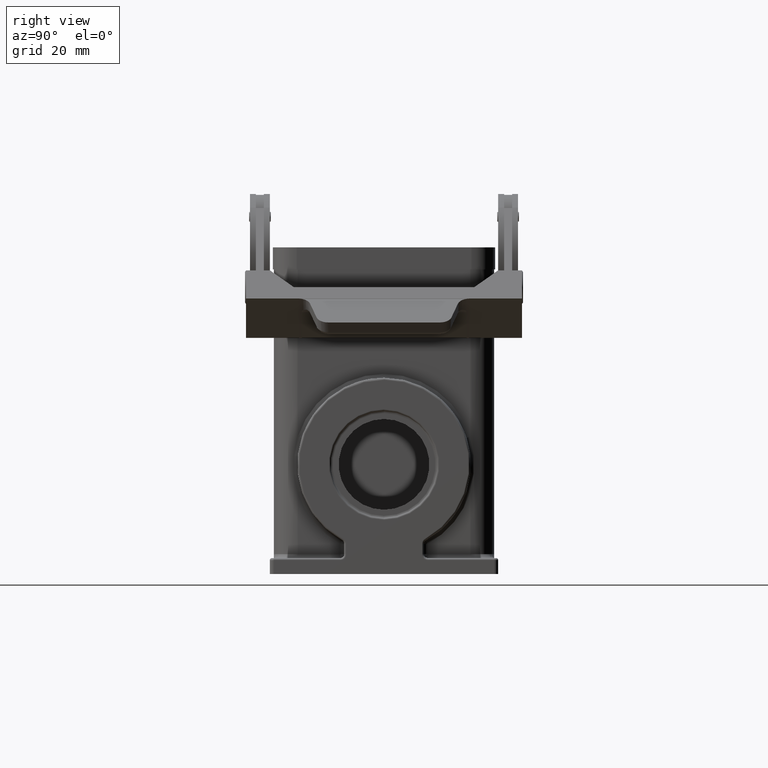
[diagram: clean part render]
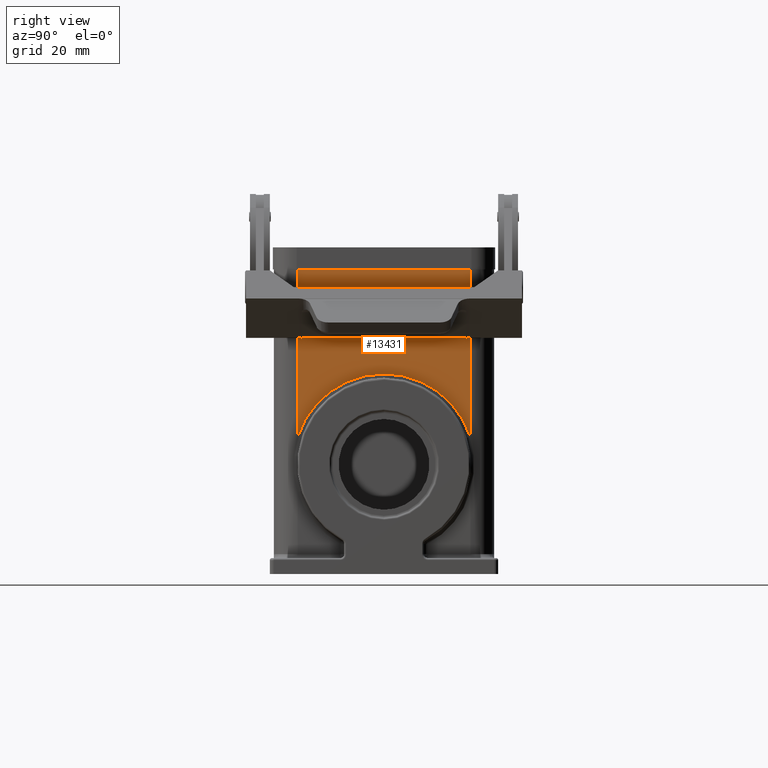
[diagram: same view with one face highlighted and labeled with its STEP entity id]
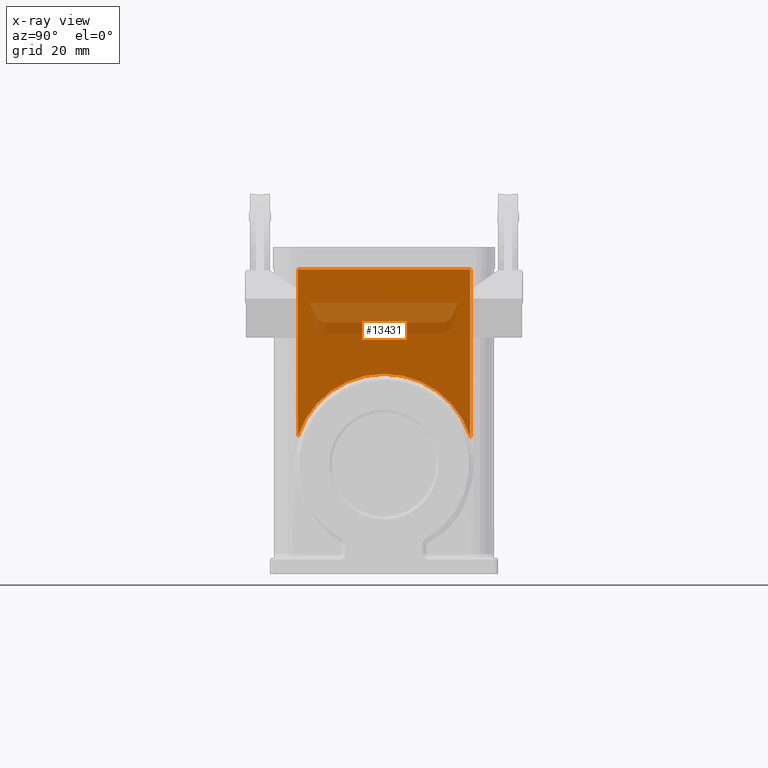
[diagram: x-ray of the same camera — body ghosted, the highlighted face saturated]
A machine part, right view. The second image highlights one B-rep face of the part: STEP entity #13431.
The next image is the same camera in x-ray: the body ghosted, the highlighted face saturated — about 21% of this face is hidden behind the body in this view.
In plain terms, the highlighted planar face has unit normal (1, 0, 0).
Its self-contained STEP definition (entity closure, byte-faithful):
#8640=CARTESIAN_POINT('',(41.250000000000014,-2.991101E-015,-2.250000000000007));
#8641=VERTEX_POINT('',#8640);
#8649=CARTESIAN_POINT('',(41.250000000000007,-21.649999999932838,-18.011437915652039));
#8650=VERTEX_POINT('',#8649);
#8651=CARTESIAN_POINT('',(41.250000000000014,-2.051220E-016,-25.000000000000007));
#8652=DIRECTION('',(1.0,0.0,0.0));
#8653=DIRECTION('',(0.0,0.0,1.0));
#8654=AXIS2_PLACEMENT_3D('',#8651,#8652,#8653);
#8655=CIRCLE('',#8654,22.750000000000000);
#8656=EDGE_CURVE('',#8641,#8650,#8655,.T.);
#13025=CARTESIAN_POINT('',(41.249999999999986,21.650000000000023,-18.011437916137623));
#13026=VERTEX_POINT('',#13025);
#13034=CARTESIAN_POINT('',(41.250000000000014,-2.051220E-016,-25.000000000000007));
#13035=DIRECTION('',(1.0,0.0,0.0));
#13036=DIRECTION('',(0.0,0.0,1.0));
#13037=AXIS2_PLACEMENT_3D('',#13034,#13035,#13036);
#13038=CIRCLE('',#13037,22.750000000000000);
#13039=EDGE_CURVE('',#13026,#8641,#13038,.T.);
#13381=CARTESIAN_POINT('',(41.250000000000014,-21.649999999999995,24.0));
#13382=VERTEX_POINT('',#13381);
#13383=CARTESIAN_POINT('',(41.250000000000014,-21.649999999999995,24.0));
#13384=DIRECTION('',(-1.691308E-016,1.598540E-012,-1.0));
#13385=VECTOR('',#13384,42.011437915652039);
#13386=LINE('',#13383,#13385);
#13387=EDGE_CURVE('',#13382,#8650,#13386,.T.);
#13407=CARTESIAN_POINT('',(41.250000000000007,21.650000000000013,1.500000000000000));
#13408=DIRECTION('',(1.0,0.0,0.0));
#13409=DIRECTION('',(0.0,0.0,-1.0));
#13410=AXIS2_PLACEMENT_3D('',#13407,#13408,#13409);
#13411=PLANE('',#13410);
#13412=ORIENTED_EDGE('',*,*,#13039,.F.);
#13413=CARTESIAN_POINT('',(41.250000000000007,21.650000000000013,24.0));
#13414=VERTEX_POINT('',#13413);
#13415=CARTESIAN_POINT('',(41.250000000000007,21.650000000000013,24.0));
#13416=DIRECTION('',(0.0,0.0,-1.0));
#13417=VECTOR('',#13416,42.011437916137623);
#13418=LINE('',#13415,#13417);
#13419=EDGE_CURVE('',#13414,#13026,#13418,.T.);
#13420=ORIENTED_EDGE('',*,*,#13419,.F.);
#13421=CARTESIAN_POINT('',(41.250000000000007,21.650000000000013,24.0));
#13422=DIRECTION('',(0.0,-1.0,0.0));
#13423=VECTOR('',#13422,43.300000000000011);
#13424=LINE('',#13421,#13423);
#13425=EDGE_CURVE('',#13414,#13382,#13424,.T.);
#13426=ORIENTED_EDGE('',*,*,#13425,.T.);
#13427=ORIENTED_EDGE('',*,*,#13387,.T.);
#13428=ORIENTED_EDGE('',*,*,#8656,.F.);
#13429=EDGE_LOOP('',(#13412,#13420,#13426,#13427,#13428));
#13430=FACE_OUTER_BOUND('',#13429,.T.);
#13431=ADVANCED_FACE('',(#13430),#13411,.T.);